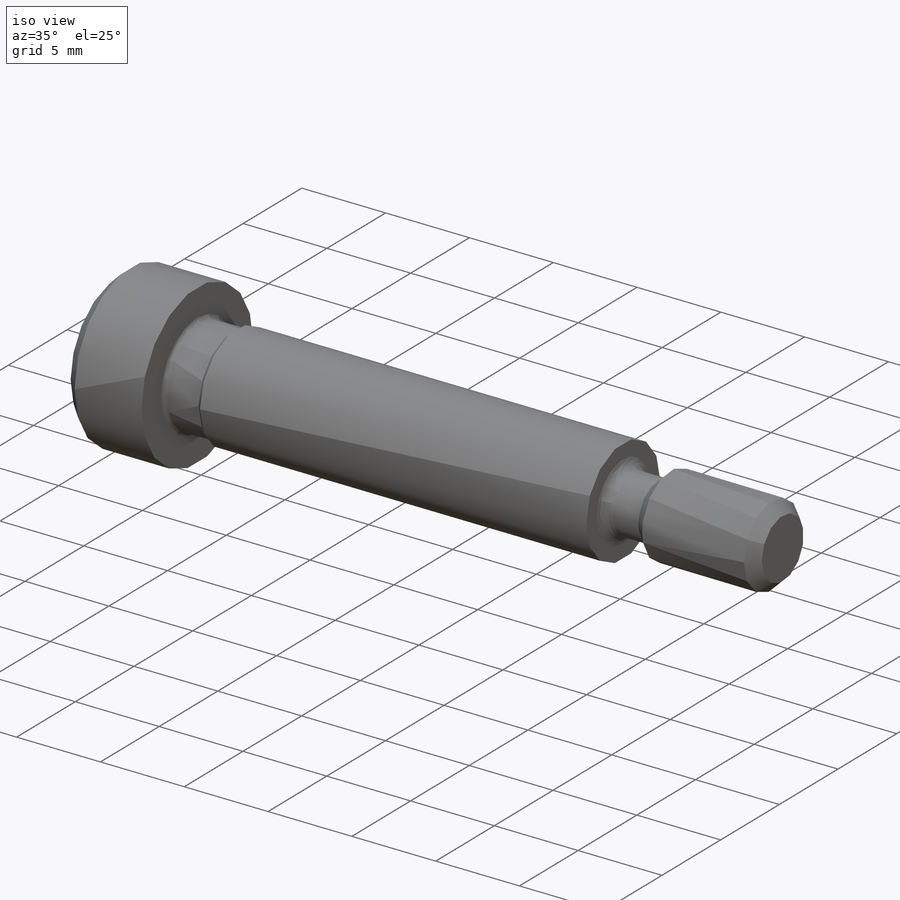
[diagram: iso view]
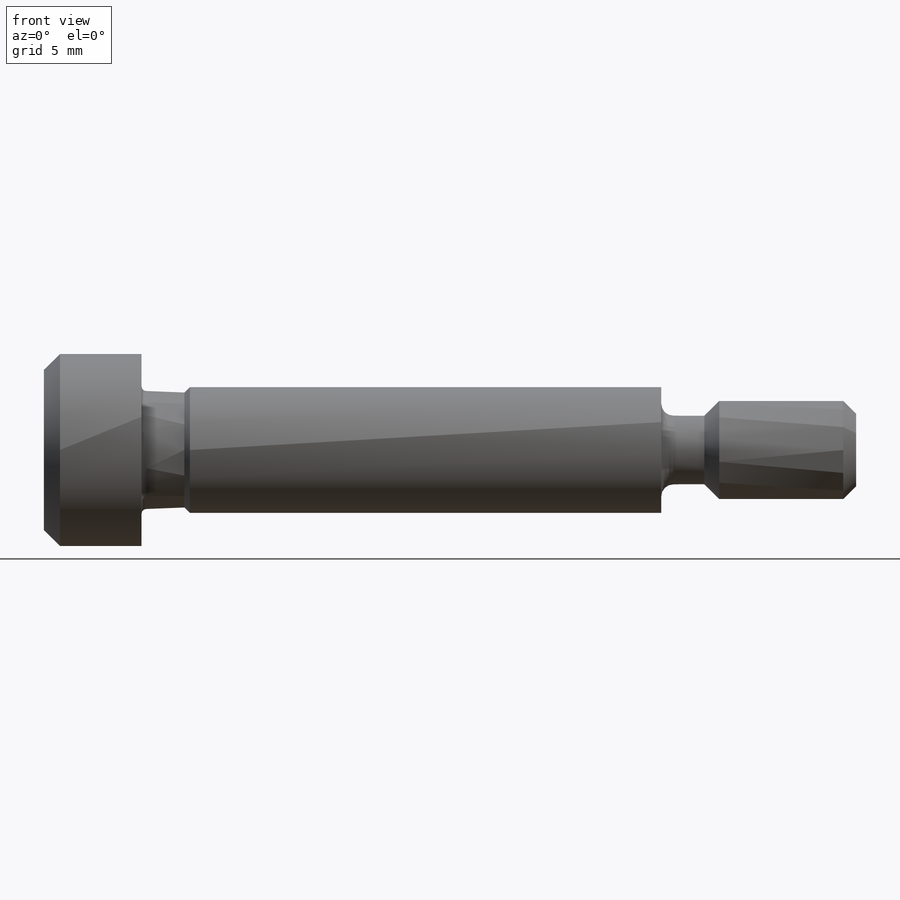
[diagram: front view]
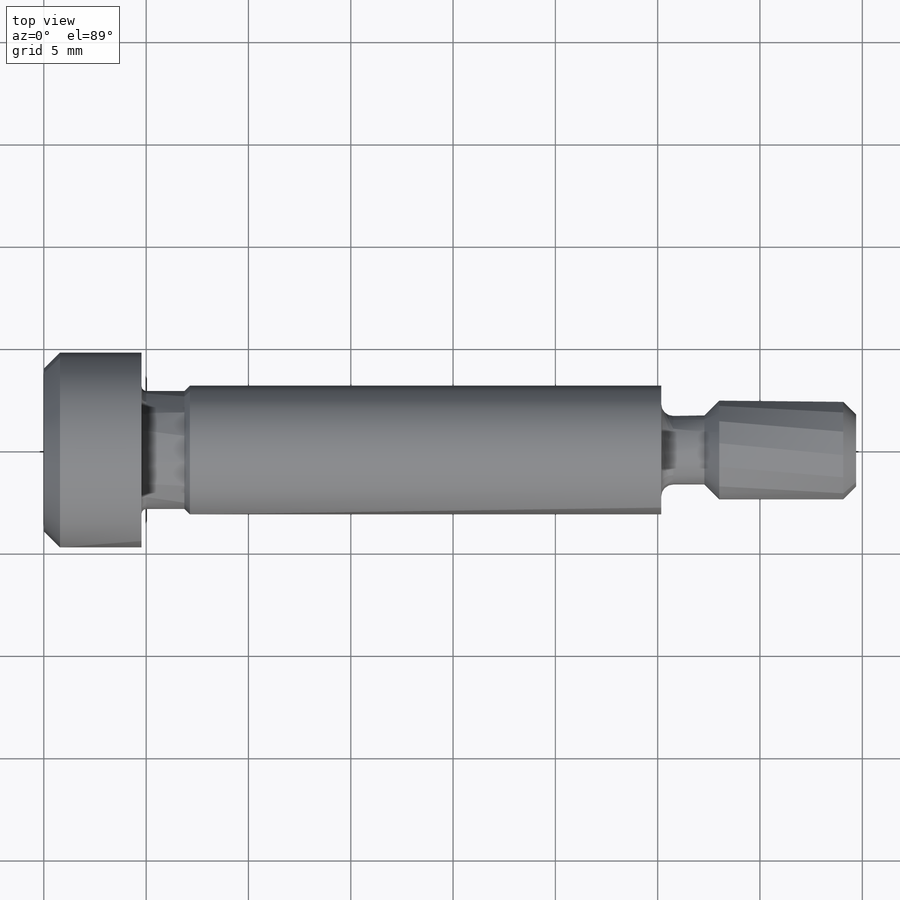
[diagram: top view]
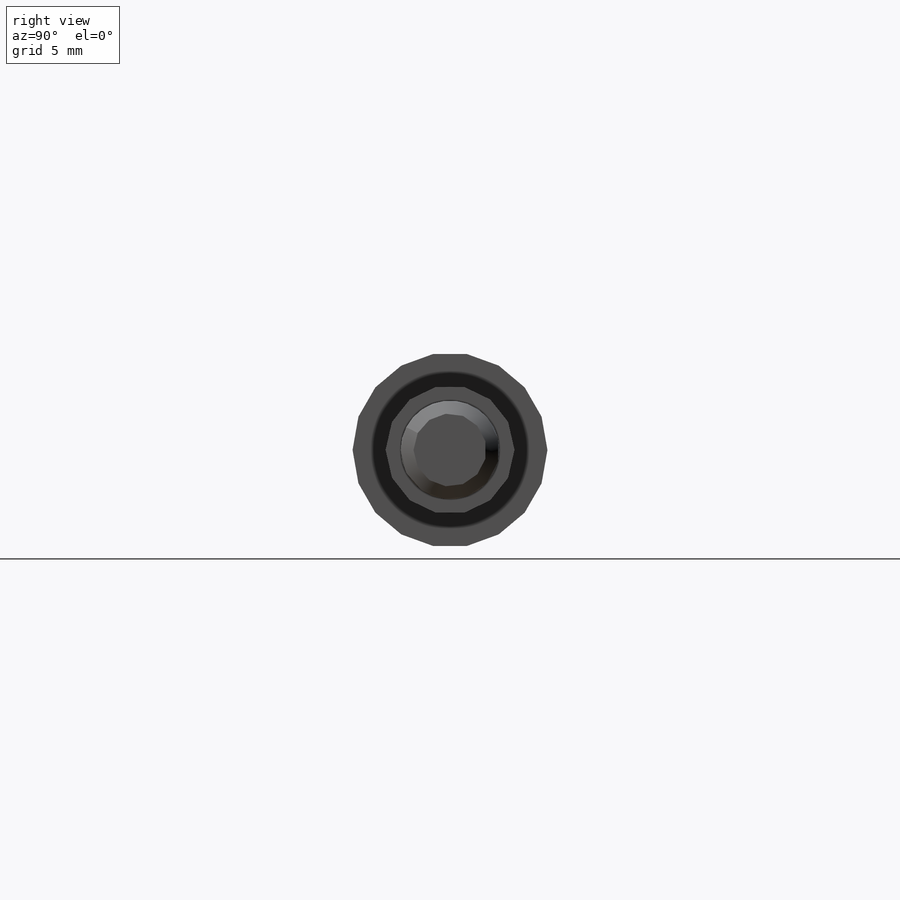
[diagram: right view]
SOLIDWORKS PART (.sldprt)
format: sldprt  version: not decoded by parser v0  size: 294,400 bytes
history: native  units: mm
features: sketch x4, cut_extrude x4, plane x3, cut_revolve x2, material x1, revolve x1, thread x1, pattern_linear x1 (+12 scaffold rows collapsed; 1 parser-record rows omitted)
feature tree (30):
  parser-record x1  (decoder bookkeeping rows leaked as tree rows — omitted from the tree; the rows remain in map.json)
  scaffold x12  (default folders/planes/origin — collapsed)
  material  "Material <not specified>"
  plane  "Plane1"
  plane  "Plane2"
  plane  "Plane3"
  sketch  "BodySke"  dims[c1.Thread_neck_fillet_rad=0.5842mm c1.Head_fillet_radius=0.2286mm c1.Head_dia=9.525mm c1.Head_ht=4.7752mm c1.Head_side_ht=3.9878mm c1.D4=~4.490128mm c1.Head_ch_ang=45.0deg c1.Shoulder_neck_dia=5.7658mm c1.Diameter=6.2992mm c1.Thread_dia=4.826mm c1.Minor_dia=~3.56616mm c1.D9=12.7mm c1.Thread_ch_ang=45.0deg c1.Thread_neck_dia=3.3782mm c1.D11=~4.490128mm c2.D11=45.0deg c2.Thread_length=9.525mm c2.D13=~4.490128mm c3.D13=45.0deg c3.Length=25.4mm c3.Thread_neck_width=2.1082mm c3.Shoulder_neck_width=2.3622mm c3.Advance=2.1082mm c3.Thread_nom=9.525mm c3.D1=~8.01243mm c4.D1=~0.715083deg c4.D2=~8.01243mm c5.D2=~0.715083deg c5.D1=~8.01243mm c6.D1=~0.715083deg c7.D1=~15.850834mm c8.D1=~0.715083deg c8.Advance=~1.05918mm c8.Thread_lim=~6.35762mm c9.D1=63.5mm]
  revolve  "BaseBody"  [1 undecoded]
  thread  "ThreadCosmetic"  [2 undecoded]
  pattern_linear  "ThdSchPat"  [2 undecoded]
  cut_revolve  "ThreadSchematic"  [1 undecoded]
  sketch  "ThdSchSke"  dims[c1.Thread_minor=~1.03886mm c1.Diameter=~1.413535mm c1.Start=~0.988134mm c1.D4=~4.446753mm c1.Vee=60.0deg c2.Thread_minor=~1.03886mm c2.Start=~2.540025mm c2.D1=~0.108159mm c2.D2=~0.108159mm c3.D1=~0.216319mm c3.SideAngle=55.0deg c3.D2=~0.216319mm c3.VeeAngle=70.0deg c3.Thread_minor=~3.56616mm c3.Overcut=7.874mm c3.Diameter=6.2992mm c3.D6=~8.326268mm c4.D1=~8.326268mm c5.D1=90.0deg c5.Start=63.5mm c6.Start=140.4874mm c7.Start=15.8496mm c8.Start=~33.34258mm c8.D1=360.0deg c8.Num_threads=7.0 c8.Advance=~0.908231mm c8.D2=1.0 c8.D4=50.0mm c8.Thread_length=~6.35762mm c8.Thread_minor=~3.56616mm c9.D1=360.0deg]
  sketch  "Sketch2"  dims[c1.D1=7.9375mm c1.D2=25.4mm c2.D2=60.0deg c2.Wall_thickness=12.827mm c2.PreBroach_depth=2.3876mm c2.PreBroach_dia=3.175mm]
  cut_revolve  "PreBroach"  Angle=360deg
  sketch  "Sketch3"  dims[c1.Hex_size=12.7mm c1.D2=6.35mm c1.D3=6.35mm c2.Hex_size=3.175mm c2.D1=1.5875mm c2.D2=1.5875mm c2.D3=~21.298547mm c3.D3=120.0deg c3.D4=3.175mm]
  cut_extrude  "Hex"  Depth=2.3876mm Key_eng=2.3876mm
  cut_extrude  "ConfigurationName"  Depth=1 CopiedFlag=1
  cut_extrude  "PartNumberID"  [1 undecoded]
  cut_extrude  "ConfigurationName"  Depth=0 CopiedFlag=0
decode coverage: 8 of 13 modeling features carry decoded parameters
note: ~ marks probable driven/reference dimensions
note: 7 parameter values undecoded
summary: no parameter record found for 4 features
note: suppression state not decoded; provenance and decode notes live in map.json
